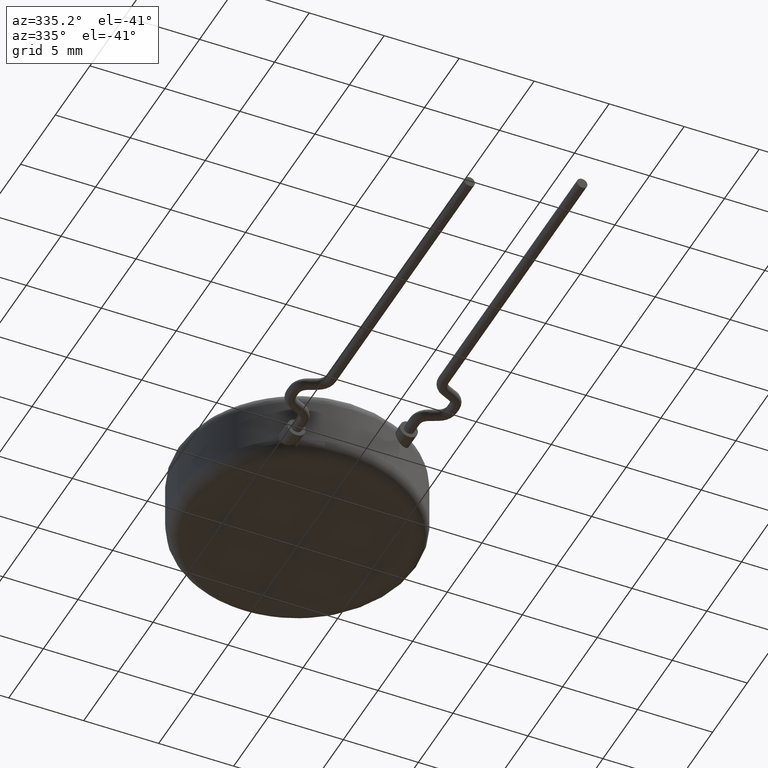
[diagram: clean part render]
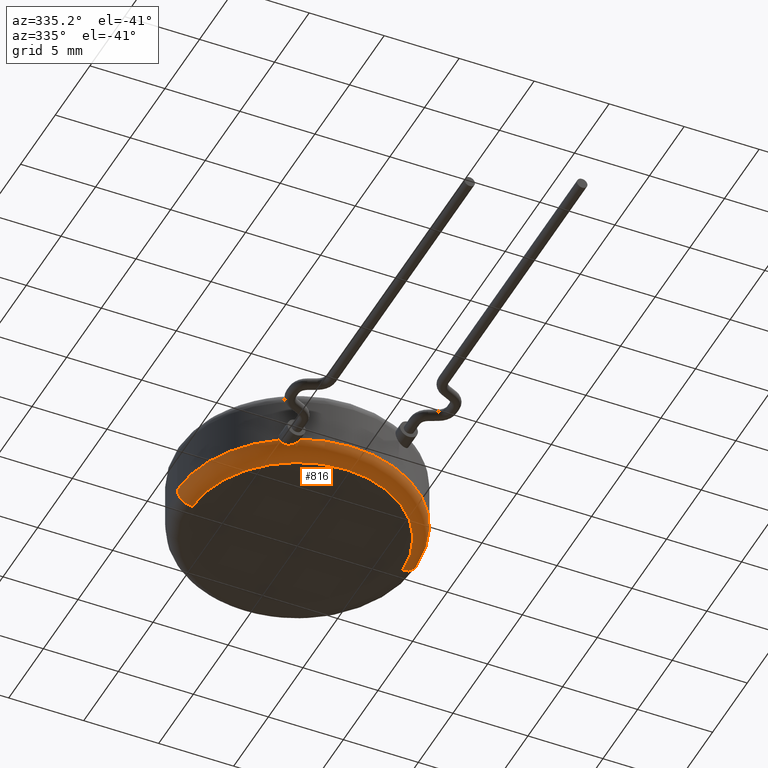
[diagram: same view with one face highlighted and labeled with its STEP entity id]
A machine part, auxiliary view. The second image highlights one B-rep face of the part: STEP entity #816.
In plain terms, the highlighted toroidal blend (fillet) surface has major radius 7 mm and minor (blend) radius 1 mm.
Its self-contained STEP definition (entity closure, byte-faithful):
#104 = ORIENTED_EDGE ( 'NONE', *, *, #3398, .T. ) ;
#188 = CIRCLE ( 'NONE', #768, 1.000000000000000000 ) ;
#261 = DIRECTION ( 'NONE',  ( 0.000000000000000000, 0.000000000000000000, 1.000000000000000000 ) ) ;
#346 = CARTESIAN_POINT ( 'NONE',  ( -3.970558724915501436, -6.866331706948214375, 0.6273049272817701194 ) ) ;
#362 = VERTEX_POINT ( 'NONE', #552 ) ;
#462 = CARTESIAN_POINT ( 'NONE',  ( 0.000000000000000000, 0.000000000000000000, 0.000000000000000000 ) ) ;
#490 = ORIENTED_EDGE ( 'NONE', *, *, #2679, .F. ) ;
#552 = CARTESIAN_POINT ( 'NONE',  ( -4.315685424949236904, -6.736086349868202205, 1.000000000000000000 ) ) ;
#685 = CARTESIAN_POINT ( 'NONE',  ( -4.271595288225024767, -6.764334081646229180, 0.8752942613554696161 ) ) ;
#747 = EDGE_CURVE ( 'NONE', #2381, #3012, #3172, .T. ) ;
#768 = AXIS2_PLACEMENT_3D ( 'NONE', #1362, #3420, #4344 ) ;
#816 = ADVANCED_FACE ( 'NONE', ( #1987 ), #1775, .T. ) ;
#1164 = ORIENTED_EDGE ( 'NONE', *, *, #4265, .F. ) ;
#1190 = CARTESIAN_POINT ( 'NONE',  ( -7.000000000000000000, 9.184850993605147944E-16, 0.000000000000000000 ) ) ;
#1215 = AXIS2_PLACEMENT_3D ( 'NONE', #3293, #261, #4350 ) ;
#1231 = DIRECTION ( 'NONE',  ( 0.000000000000000000, 0.000000000000000000, 1.000000000000000000 ) ) ;
#1362 = CARTESIAN_POINT ( 'NONE',  ( 7.000000000000000000, 0.000000000000000000, 1.000000000000000000 ) ) ;
#1395 = CARTESIAN_POINT ( 'NONE',  ( -3.845227405366377305, -6.919274642419722454, 0.5960824347245660126 ) ) ;
#1403 = CARTESIAN_POINT ( 'NONE',  ( 7.000000000000000000, 0.000000000000000000, 0.000000000000000000 ) ) ;
#1417 = AXIS2_PLACEMENT_3D ( 'NONE', #1597, #2638, #2621 ) ;
#1441 = DIRECTION ( 'NONE',  ( 0.000000000000000000, 0.000000000000000000, 1.000000000000000000 ) ) ;
#1597 = CARTESIAN_POINT ( 'NONE',  ( -7.000000000000000000, 8.572527594031473190E-16, 1.000000000000000000 ) ) ;
#1608 = VERTEX_POINT ( 'NONE', #2517 ) ;
#1633 = AXIS2_PLACEMENT_3D ( 'NONE', #1887, #1231, #3947 ) ;
#1775 = TOROIDAL_SURFACE ( 'NONE', #3527, 7.000000000000000000, 1.000000000000000000 ) ;
#1887 = CARTESIAN_POINT ( 'NONE',  ( 0.000000000000000000, 0.000000000000000000, 1.000000000000000000 ) ) ;
#1942 = EDGE_CURVE ( 'NONE', #3012, #3958, #3801, .T. ) ;
#1987 = FACE_OUTER_BOUND ( 'NONE', #2122, .T. ) ;
#2015 = CARTESIAN_POINT ( 'NONE',  ( 8.000000000000000000, 9.797174393178825657E-16, 1.000000000000000000 ) ) ;
#2122 = EDGE_LOOP ( 'NONE', ( #3667, #2913, #104, #1164, #490, #3920 ) ) ;
#2306 = CARTESIAN_POINT ( 'NONE',  ( -3.311561010046653930, -7.257699553184878027, 0.7745808007672809747 ) ) ;
#2381 = VERTEX_POINT ( 'NONE', #1403 ) ;
#2385 = CARTESIAN_POINT ( 'NONE',  ( -4.315685424949236904, -6.736086349868202205, 1.000000000000000000 ) ) ;
#2412 = CIRCLE ( 'NONE', #1633, 8.000000000000000000 ) ;
#2431 = CARTESIAN_POINT ( 'NONE',  ( 0.000000000000000000, 0.000000000000000000, 1.000000000000000000 ) ) ;
#2517 = CARTESIAN_POINT ( 'NONE',  ( -3.184314575050759988, -7.338946837736277651, 1.000000000000000666 ) ) ;
#2563 = CARTESIAN_POINT ( 'NONE',  ( -8.000000000000000000, 0.000000000000000000, 1.000000000000000000 ) ) ;
#2621 = DIRECTION ( 'NONE',  ( -1.000000000000000000, 1.224646799147352468E-16, 0.000000000000000000 ) ) ;
#2638 = DIRECTION ( 'NONE',  ( 1.224646799147353207E-16, 1.000000000000000000, -0.000000000000000000 ) ) ;
#2679 = EDGE_CURVE ( 'NONE', #362, #1608, #4288, .T. ) ;
#2773 = DIRECTION ( 'NONE',  ( 1.000000000000000000, 0.000000000000000000, 0.000000000000000000 ) ) ;
#2855 = DIRECTION ( 'NONE',  ( -0.000000000000000000, -0.000000000000000000, -1.000000000000000000 ) ) ;
#2913 = ORIENTED_EDGE ( 'NONE', *, *, #747, .F. ) ;
#2945 = CARTESIAN_POINT ( 'NONE',  ( -3.499816446517595825, -7.124081684425736860, 0.6426684715951962446 ) ) ;
#3012 = VERTEX_POINT ( 'NONE', #1190 ) ;
#3172 = CIRCLE ( 'NONE', #4036, 7.000000000000000000 ) ;
#3187 = DIRECTION ( 'NONE',  ( 1.000000000000000000, 0.000000000000000000, 0.000000000000000000 ) ) ;
#3293 = CARTESIAN_POINT ( 'NONE',  ( 0.000000000000000000, 0.000000000000000000, 1.000000000000000000 ) ) ;
#3295 = CARTESIAN_POINT ( 'NONE',  ( -3.184314575050759988, -7.338946837736277651, 1.000000000000000666 ) ) ;
#3304 = EDGE_CURVE ( 'NONE', #3958, #362, #2412, .T. ) ;
#3349 = CARTESIAN_POINT ( 'NONE',  ( -3.229094042919709917, -7.319517358909734206, 0.8733445384438497383 ) ) ;
#3381 = CARTESIAN_POINT ( 'NONE',  ( -4.186366468791870687, -6.789539715780639639, 0.7684793140923563692 ) ) ;
#3398 = EDGE_CURVE ( 'NONE', #2381, #3423, #188, .T. ) ;
#3420 = DIRECTION ( 'NONE',  ( 0.000000000000000000, -1.000000000000000000, 0.000000000000000000 ) ) ;
#3423 = VERTEX_POINT ( 'NONE', #2015 ) ;
#3527 = AXIS2_PLACEMENT_3D ( 'NONE', #2431, #1441, #2773 ) ;
#3667 = ORIENTED_EDGE ( 'NONE', *, *, #1942, .F. ) ;
#3801 = CIRCLE ( 'NONE', #1417, 1.000000000000000000 ) ;
#3920 = ORIENTED_EDGE ( 'NONE', *, *, #3304, .F. ) ;
#3947 = DIRECTION ( 'NONE',  ( 1.000000000000000000, 0.000000000000000000, 0.000000000000000000 ) ) ;
#3958 = VERTEX_POINT ( 'NONE', #2563 ) ;
#4036 = AXIS2_PLACEMENT_3D ( 'NONE', #462, #2855, #3187 ) ;
#4047 = CIRCLE ( 'NONE', #1215, 8.000000000000000000 ) ;
#4265 = EDGE_CURVE ( 'NONE', #1608, #3423, #4047, .T. ) ;
#4288 = B_SPLINE_CURVE_WITH_KNOTS ( 'NONE', 3,
 ( #2385, #685, #3381, #346, #1395, #4352, #2945, #2306, #3349, #3295 ),
 .UNSPECIFIED., .F., .F.,
 ( 4, 2, 2, 2, 4 ),
 ( 2.138220758071945538E-07, 0.0004002225353560212237, 0.0008002312486362351792, 0.001200239961916449135, 0.001600248675196663199 ),
 .UNSPECIFIED. ) ;
#4344 = DIRECTION ( 'NONE',  ( 0.000000000000000000, 0.000000000000000000, -1.000000000000000000 ) ) ;
#4350 = DIRECTION ( 'NONE',  ( 1.000000000000000000, 0.000000000000000000, 0.000000000000000000 ) ) ;
#4352 = CARTESIAN_POINT ( 'NONE',  ( -3.610570371422828106, -7.048802370124122696, 0.6047319401682526019 ) ) ;